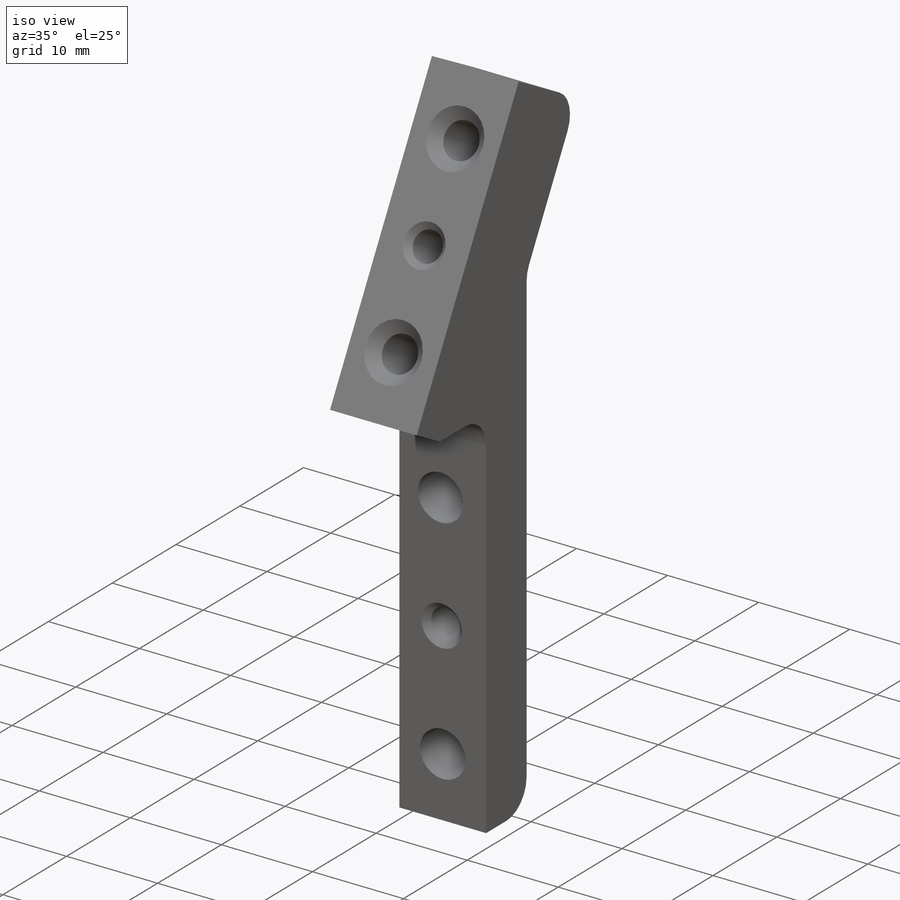
[diagram: iso view]
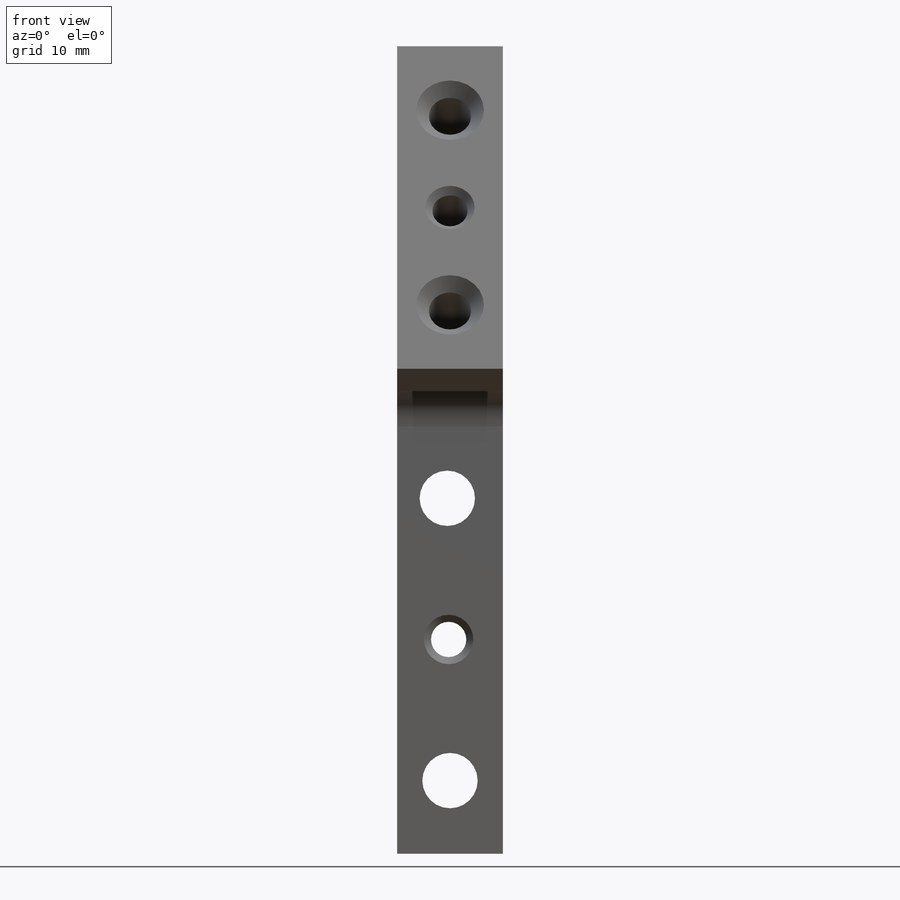
[diagram: front view]
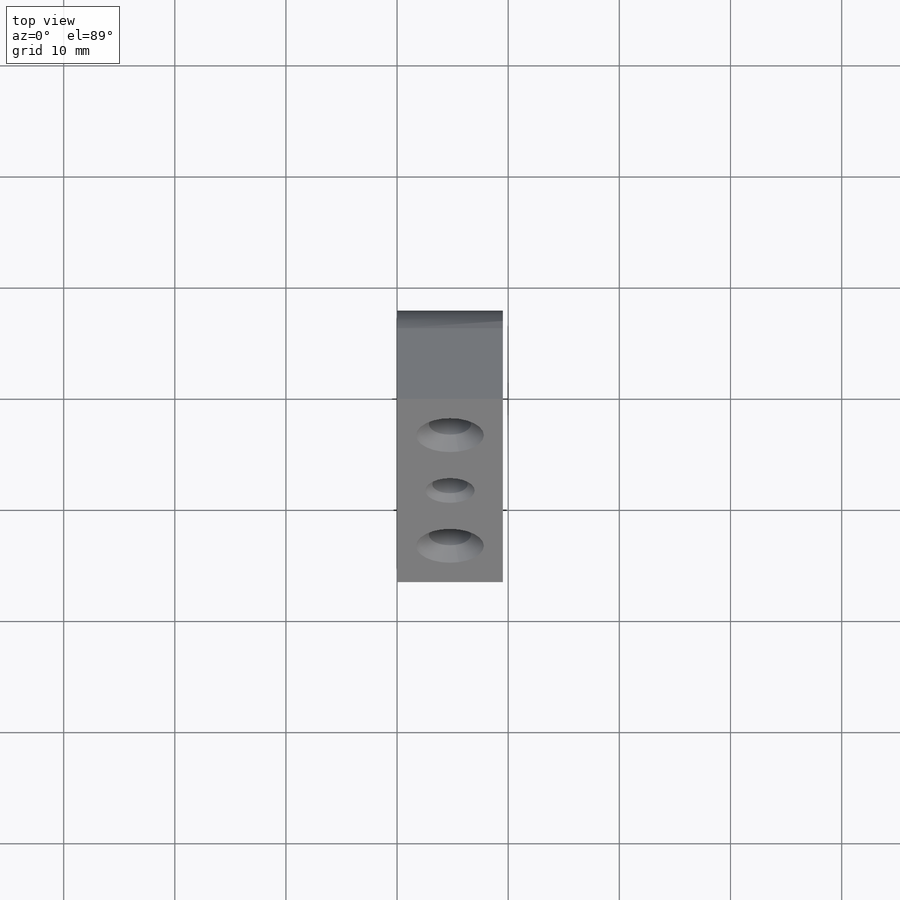
[diagram: top view]
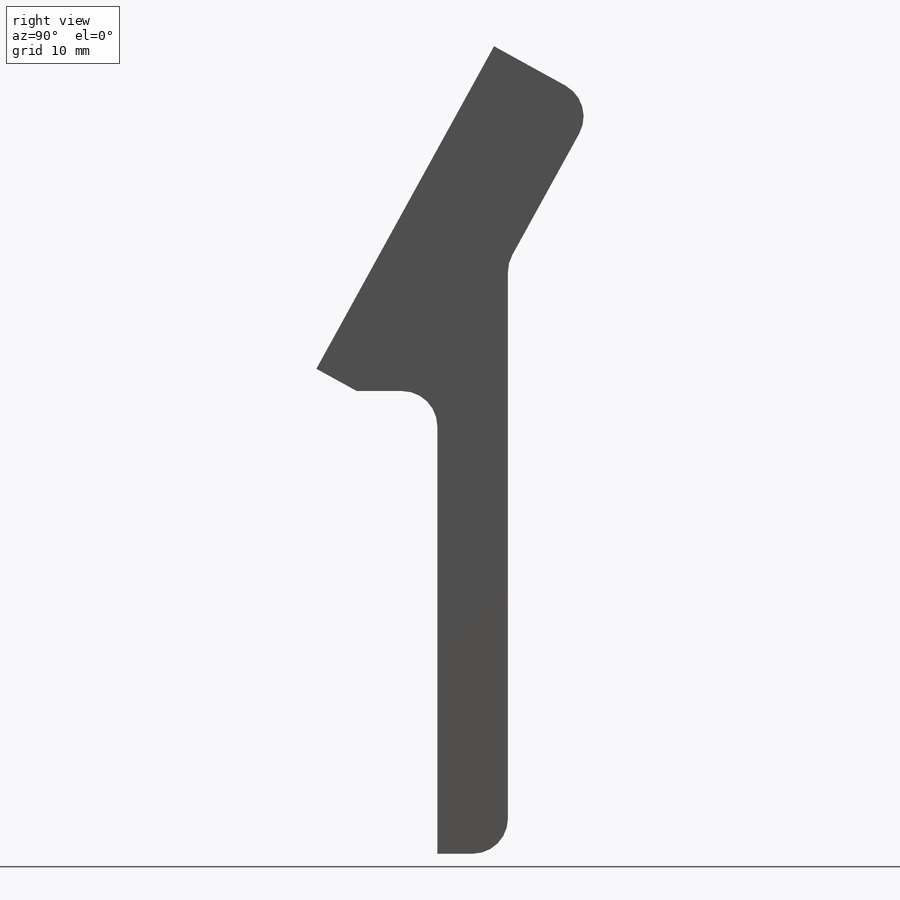
[diagram: right view]
SOLIDWORKS PART (.sldprt)
format: sldprt  version: not decoded by parser v0  size: 317,952 bytes
history: native  units: mm
features: sketch x12, hole x4, extrude x3, thread x2, material x1, cut_extrude x1, fillet x1 (+16 scaffold rows collapsed)
feature tree (40):
  scaffold x16  (default folders/planes/origin — collapsed)
  material  "Material <not specified>"
  sketch  "Sketch1"  dims[c1.D1=6.35mm c1.D2=40.0mm c1.D3=28.0mm c1.D4=38.1mm c2.D4=151.15deg]
  extrude  "Boss-Extrude1"  Depth=9.525mm
  sketch  "Sketch2"  dims[D1=0.0mm]
  extrude  "Boss-Extrude2"  Depth=10.5mm
  sketch  "Sketch3"  dims[D1=~3.498162mm]
  extrude  "Boss-Extrude3"  [1 undecoded]
  sketch  "Sketch4"  dims[D1=6.35mm]
  cut_extrude  "Cut-Extrude1"  [1 undecoded]
  fillet  "Fillet1"  Radius=3.175mm
  hole  "#10-24 Tapped Hole1"  Diameter=3.7973mm Depth=12.83mm
  sketch  "Sketch6"  dims[D1=20.0mm]
  sketch  "Sketch5"  dims[hole-wizard template sketch: 40 standard entries collapsed; hole parameters kept: c13.Tap Drill Depth=12.83mm c13.Near C'Sink Dia.=6.096mm c13.D4=~33.297463mm c13.Near C'Sink Angle=90.0deg c14.D5=~14.816244mm c14.Drill Angle=118.0deg]
  thread  "Hole Thread1"  Diameter=9.65mm  [1 undecoded]
  thread  "Hole Thread2"  Diameter=9.65mm  [1 undecoded]
  hole  "1/8 (0.125) Diameter Hole1"  Diameter=3.175mm Depth=8mm
  sketch  "Sketch8"
  sketch  "Sketch7"  dims[hole-wizard template sketch: 39 standard entries collapsed; hole parameters kept: c13.Hole Dia.=3.175mm c13.Hole Depth=8.0mm c13.Near C'Sink Dia.=4.445mm c13.D4=~33.297463mm c13.Near C'Sink Angle=90.0deg c14.D5=~14.816244mm c14.Drill Angle=118.0deg]
  hole  "#10 Clearance Hole1"  Diameter=4.9784mm Depth=13.160701mm
  sketch  "Sketch10"  dims[c1.D1=6.35mm c1.D2=~7.930165mm c2.D1=9.525mm c2.D2=25.4mm c3.D1=9.652mm]
  sketch  "Sketch11"  dims[hole-wizard template sketch: 60 standard entries collapsed; hole parameters kept: c18.Thru Hole Depth=~13.160701mm]
  hole  "1/8 (0.125) Diameter Hole2"  Diameter=3.175mm Depth=6.35mm
  sketch  "Sketch13"
  sketch  "Sketch12"  dims[hole-wizard template sketch: 47 standard entries collapsed; hole parameters kept: c15.Thru Hole Depth=6.35mm c15.Near C'Sink Dia.=4.445mm c15.D4=~3.666174mm c15.Near C'Sink Angle=90.0deg c15.Far C'Sink Dia.=4.445mm c15.D6=~9.919017mm c15.Far C'Sink Angle=90.0deg]
decode coverage: 19 of 23 modeling features carry decoded parameters
note: ~ marks probable driven/reference dimensions
note: 4 parameter values undecoded
summary: Diameter pulled from absorbed wizard sketch
note: suppression state not decoded; provenance and decode notes live in map.json
